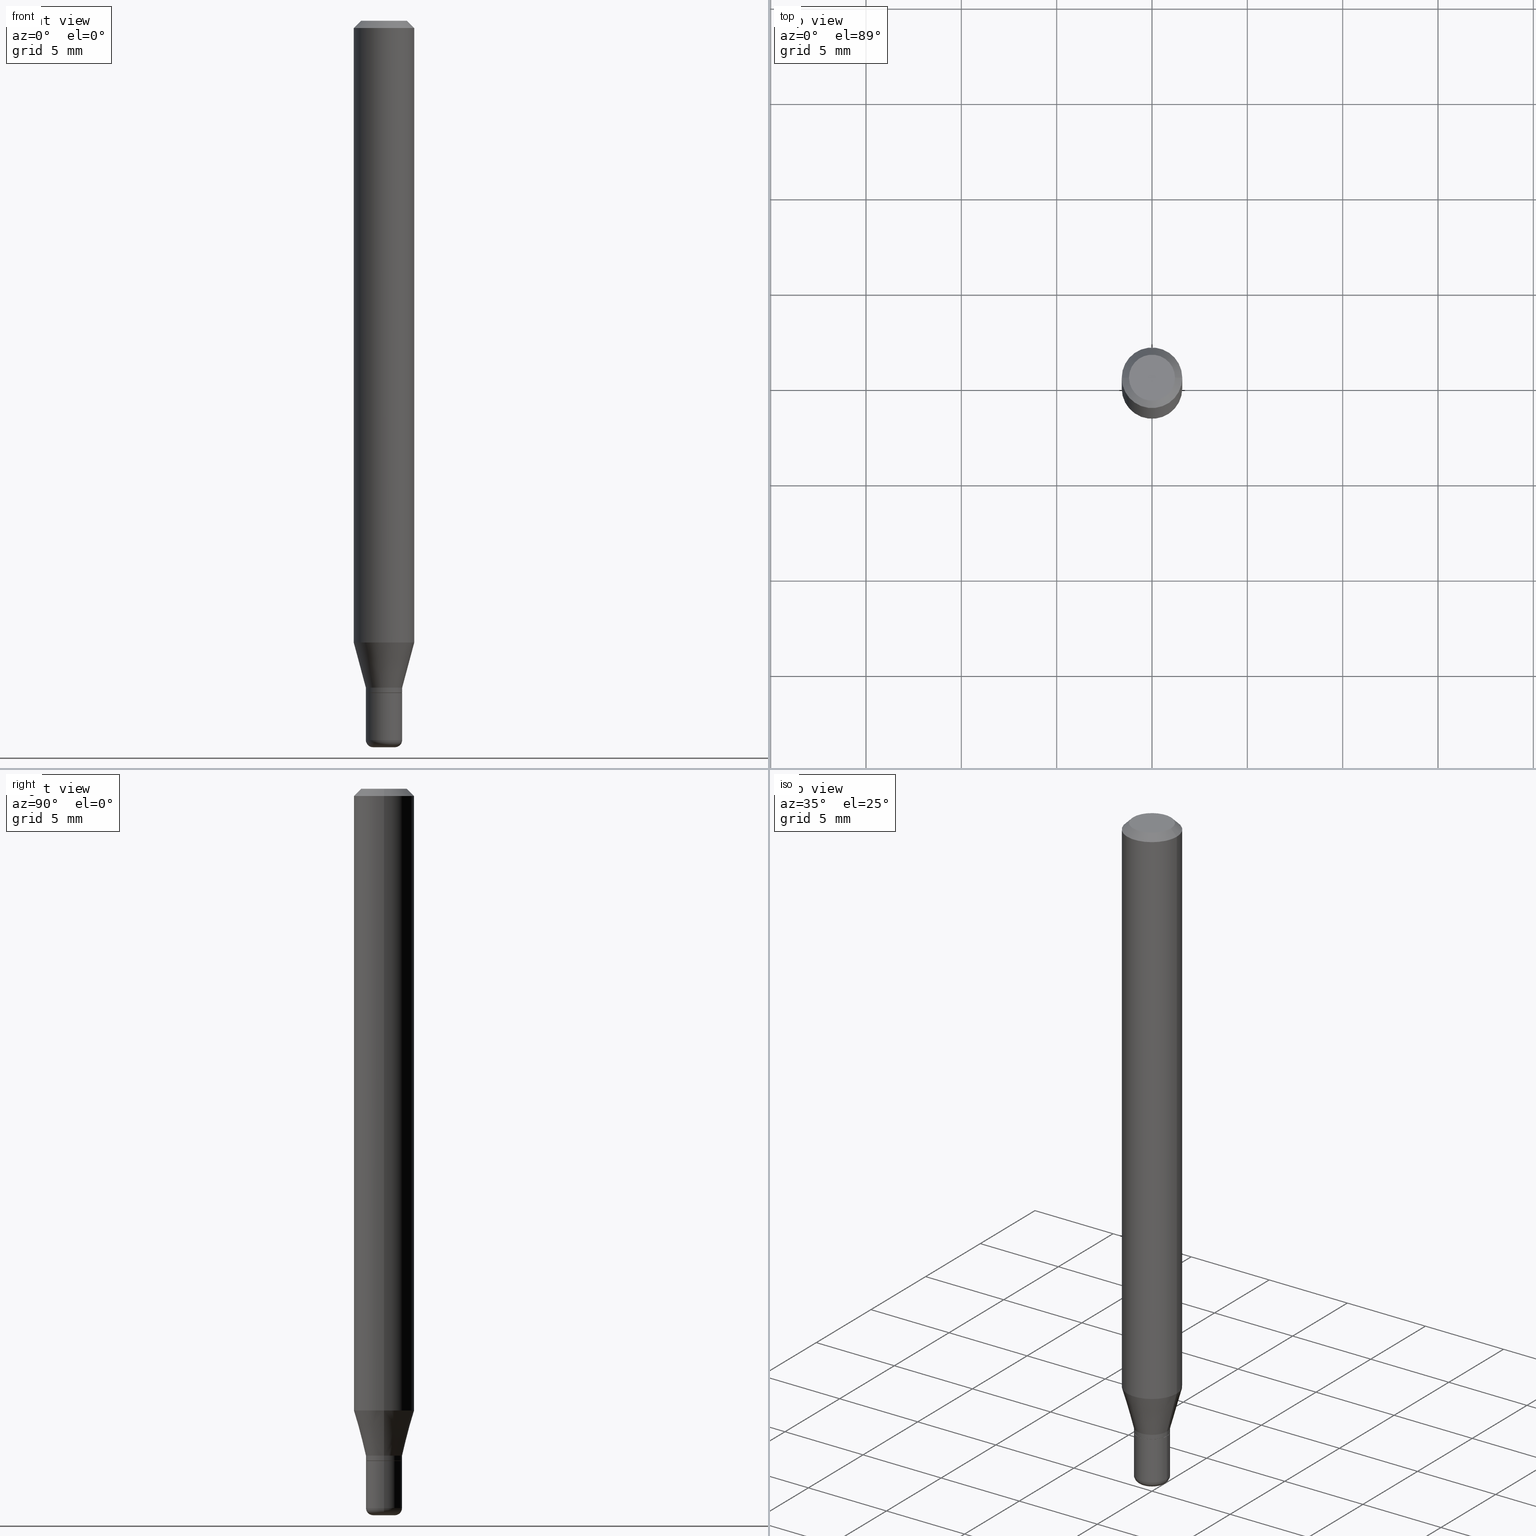
[diagram: canonical four-view strip — front | top / right | iso, engineering-drawing reading convention]
A machine part, canonical four-view strip (front | top / right | iso — engineering-drawing reading convention). The complete STEP part file that produces these views, byte-faithful:
ISO-10303-21;
HEADER;
FILE_DESCRIPTION (( 'STEP AP203' ),
    '1' );
FILE_NAME ('09040.STEP',
    '2024-02-29T21:31:39',
    ( '' ),
    ( '' ),
    'SwSTEP 2.0',
    'SolidWorks 2023',
    '' );
FILE_SCHEMA (( 'CONFIG_CONTROL_DESIGN' ));
ENDSEC;

DATA;
#1 = DIRECTION ( 'NONE',  ( 1.000000000000000000, -6.982962677686270655E-15, 4.883557194083114583E-29 ) ) ;
#2 = CARTESIAN_POINT ( 'NONE',  ( -0.02250000000000000264, -4.997873077495366167E-15, -1.500000000000000222 ) ) ;
#3 = CC_DESIGN_DATE_AND_TIME_ASSIGNMENT ( #504, #149, ( #316 ) ) ;
#4 = DIRECTION ( 'NONE',  ( 1.000000000000000000, -6.982962677686266711E-15, 0.000000000000000000 ) ) ;
#5 = ORIENTED_EDGE ( 'NONE', *, *, #499, .T. ) ;
#6 = VECTOR ( 'NONE', #382, 39.37007874015748143 ) ;
#7 = DIRECTION ( 'NONE',  ( 1.000000000000000000, -6.982962677686255667E-15, 0.000000000000000000 ) ) ;
#8 = VERTEX_POINT ( 'NONE', #476 ) ;
#9 = DIRECTION ( 'NONE',  ( -2.445468806185136597E-29, 3.491481338843145583E-15, 1.000000000000000000 ) ) ;
#10 = ORIENTED_EDGE ( 'NONE', *, *, #409, .F. ) ;
#11 = CARTESIAN_POINT ( 'NONE',  ( -0.03749999999999999861, -4.541316277676974321E-15, -1.377000000000000002 ) ) ;
#12 = ADVANCED_FACE ( 'NONE', ( #239 ), #119, .T. ) ;
#13 = AXIS2_PLACEMENT_3D ( 'NONE', #159, #320, #440 ) ;
#14 = CARTESIAN_POINT ( 'NONE',  ( 0.000000000000000000, 0.000000000000000000, 0.000000000000000000 ) ) ;
#15 = ORIENTED_EDGE ( 'NONE', *, *, #400, .T. ) ;
#16 = CARTESIAN_POINT ( 'NONE',  ( 0.03749999999999999861, -2.618611004132350016E-16, 1.828566290923475922E-30 ) ) ;
#17 = ORIENTED_EDGE ( 'NONE', *, *, #46, .T. ) ;
#18 = PERSON ( 'UNSPECIFIED', 'UNSPECIFIED', 'UNSPECIFIED', ('UNSPECIFIED'), ('UNSPECIFIED'), ('UNSPECIFIED') ) ;
#19 = ADVANCED_FACE ( 'NONE', ( #442 ), #251, .T. ) ;
#20 = DIRECTION ( 'NONE',  ( -2.445468806185136597E-29, 3.491481338843145583E-15, 1.000000000000000000 ) ) ;
#21 = ORIENTED_EDGE ( 'NONE', *, *, #452, .T. ) ;
#22 = CIRCLE ( 'NONE', #323, 0.03749999999999999861 ) ;
#23 = PRODUCT_DEFINITION_FORMATION_WITH_SPECIFIED_SOURCE ( 'ANY', '', #135, .NOT_KNOWN. ) ;
#24 = PERSON_AND_ORGANIZATION_ROLE ( 'creator' ) ;
#25 = FACE_OUTER_BOUND ( 'NONE', #514, .T. ) ;
#26 = EDGE_LOOP ( 'NONE', ( #223, #396 ) ) ;
#27 = APPROVAL_STATUS ( 'not_yet_approved' ) ;
#28 = DIRECTION ( 'NONE',  ( 2.445468806185136597E-29, -3.491481338843145583E-15, -1.000000000000000000 ) ) ;
#29 = ORIENTED_EDGE ( 'NONE', *, *, #35, .F. ) ;
#30 = ORIENTED_EDGE ( 'NONE', *, *, #484, .F. ) ;
#31 = VECTOR ( 'NONE', #453, 39.37007874015748143 ) ;
#32 = DIRECTION ( 'NONE',  ( 1.000000000000000000, -6.982962677686265922E-15, 4.876176775795935793E-29 ) ) ;
#33 = CARTESIAN_POINT ( 'NONE',  ( -0.06250000000000000000, -4.037920949980918021E-15, -1.283698729810778039 ) ) ;
#34 = DIRECTION ( 'NONE',  ( -2.445468806185136597E-29, 3.491481338843145583E-15, 1.000000000000000000 ) ) ;
#35 = EDGE_CURVE ( 'NONE', #151, #422, #77, .T. ) ;
#36 = CARTESIAN_POINT ( 'NONE',  ( 3.631521177184928138E-29, -5.184849788182071492E-15, -1.485000000000000098 ) ) ;
#37 = AXIS2_PLACEMENT_3D ( 'NONE', #235, #114, #362 ) ;
#38 = AXIS2_PLACEMENT_3D ( 'NONE', #404, #243, #513 ) ;
#39 = DIRECTION ( 'NONE',  ( 0.7071067811865479058, -7.319954787623257623E-15, -0.7071067811865471286 ) ) ;
#40 = DIRECTION ( 'NONE',  ( -0.7071067811865479058, 2.468850131082261005E-15, -0.7071067811865471286 ) ) ;
#41 = CARTESIAN_POINT ( 'NONE',  ( 0.000000000000000000, 0.000000000000000000, 0.000000000000000000 ) ) ;
#42 = EDGE_LOOP ( 'NONE', ( #299, #57 ) ) ;
#43 = DIRECTION ( 'NONE',  ( -2.445468806185136597E-29, 3.491481338843145583E-15, 1.000000000000000000 ) ) ;
#44 =( GEOMETRIC_REPRESENTATION_CONTEXT ( 3 ) GLOBAL_UNCERTAINTY_ASSIGNED_CONTEXT ( ( #262 ) ) GLOBAL_UNIT_ASSIGNED_CONTEXT ( ( #319, #284, #446 ) ) REPRESENTATION_CONTEXT ( 'NONE', 'WORKASPACE' ) );
#45 = CARTESIAN_POINT ( 'NONE',  ( 3.668203209277632395E-31, -5.237222008264614861E-17, -0.01499999999999970281 ) ) ;
#46 = EDGE_CURVE ( 'NONE', #91, #171, #244, .T. ) ;
#47 = DIRECTION ( 'NONE',  ( 1.000000000000000000, -6.982962677686266711E-15, 4.852736867747365086E-29 ) ) ;
#48 = CALENDAR_DATE ( 2024, 29, 2 ) ;
#49 = CARTESIAN_POINT ( 'NONE',  ( -0.03749999999999999167, -4.576231091065405970E-15, -1.387000000000000233 ) ) ;
#50 = AXIS2_PLACEMENT_3D ( 'NONE', #120, #282, #276 ) ;
#51 = CALENDAR_DATE ( 2024, 29, 2 ) ;
#52 = DIRECTION ( 'NONE',  ( 1.000000000000000000, -6.982962677686255667E-15, 0.000000000000000000 ) ) ;
#53 = PRODUCT_DEFINITION_SHAPE ( 'NONE', 'NONE',  #205 ) ;
#54 = EDGE_LOOP ( 'NONE', ( #361, #386, #67, #196 ) ) ;
#55 = ADVANCED_FACE ( 'NONE', ( #79 ), #402, .F. ) ;
#56 = CARTESIAN_POINT ( 'NONE',  ( 0.000000000000000000, 0.000000000000000000, 0.000000000000000000 ) ) ;
#57 = ORIENTED_EDGE ( 'NONE', *, *, #218, .F. ) ;
#58 = CALENDAR_DATE ( 2024, 29, 2 ) ;
#59 = DIRECTION ( 'NONE',  ( -2.445468806185136597E-29, 3.491481338843145583E-15, 1.000000000000000000 ) ) ;
#60 = ORIENTED_EDGE ( 'NONE', *, *, #148, .T. ) ;
#61 = AXIS2_PLACEMENT_3D ( 'NONE', #14, #9, #485 ) ;
#62 = VECTOR ( 'NONE', #125, 39.37007874015748143 ) ;
#63 = DIRECTION ( 'NONE',  ( 1.000000000000000000, -6.982962677686268288E-15, 0.000000000000000000 ) ) ;
#64 = ORIENTED_EDGE ( 'NONE', *, *, #265, .F. ) ;
#65 = CARTESIAN_POINT ( 'NONE',  ( 3.393087968581877252E-29, -4.844430357644865674E-15, -1.387500000000000178 ) ) ;
#66 = EDGE_CURVE ( 'NONE', #111, #193, #431, .T. ) ;
#67 = ORIENTED_EDGE ( 'NONE', *, *, #248, .F. ) ;
#68 = DIRECTION ( 'NONE',  ( -2.445468806185136597E-29, 3.491481338843145583E-15, 1.000000000000000000 ) ) ;
#69 = PLANE ( 'NONE',  #278 ) ;
#70 = AXIS2_PLACEMENT_3D ( 'NONE', #288, #170, #131 ) ;
#71 = AXIS2_PLACEMENT_3D ( 'NONE', #200, #158, #321 ) ;
#72 = DIRECTION ( 'NONE',  ( 0.000000000000000000, 0.000000000000000000, 1.000000000000000000 ) ) ;
#73 = AXIS2_PLACEMENT_3D ( 'NONE', #263, #59, #461 ) ;
#74 = VERTEX_POINT ( 'NONE', #202 ) ;
#75 = EDGE_CURVE ( 'NONE', #506, #340, #121, .T. ) ;
#76 = MECHANICAL_CONTEXT ( 'NONE', #191, 'mechanical' ) ;
#77 = LINE ( 'NONE', #283, #363 ) ;
#78 = PLANE ( 'NONE',  #237 ) ;
#79 = FACE_OUTER_BOUND ( 'NONE', #26, .T. ) ;
#80 = CARTESIAN_POINT ( 'NONE',  ( 3.316907271900976589E-16, 0.04750000000000000749, -2.925296391183627249E-17 ) ) ;
#81 = VECTOR ( 'NONE', #87, 39.37007874015748143 ) ;
#82 = ADVANCED_FACE ( 'NONE', ( #204 ), #301, .T. ) ;
#83 = AXIS2_PLACEMENT_3D ( 'NONE', #56, #306, #222 ) ;
#84 = DIRECTION ( 'NONE',  ( 1.000000000000000000, -6.982962677686265922E-15, 4.876176775795935793E-29 ) ) ;
#85 = PERSON_AND_ORGANIZATION ( #18, #347 ) ;
#86 = CYLINDRICAL_SURFACE ( 'NONE', #420, 0.03749999999999999861 ) ;
#87 = DIRECTION ( 'NONE',  ( -2.445468806185136877E-29, 3.491481338843145188E-15, 1.000000000000000000 ) ) ;
#88 = EDGE_LOOP ( 'NONE', ( #462, #173, #165, #425 ) ) ;
#89 = DIRECTION ( 'NONE',  ( -2.445468806185136597E-29, 3.491481338843145583E-15, 1.000000000000000000 ) ) ;
#90 = CIRCLE ( 'NONE', #433, 0.03749999999999999167 ) ;
#91 = VERTEX_POINT ( 'NONE', #285 ) ;
#92 = ADVANCED_FACE ( 'NONE', ( #118 ), #313, .T. ) ;
#93 = FACE_OUTER_BOUND ( 'NONE', #325, .T. ) ;
#94 = DIRECTION ( 'NONE',  ( -2.445468806185136877E-29, 3.491481338843145188E-15, 1.000000000000000000 ) ) ;
#95 = SECURITY_CLASSIFICATION_LEVEL ( 'unclassified' ) ;
#96 = CYLINDRICAL_SURFACE ( 'NONE', #371, 0.03749999999999999167 ) ;
#97 = CC_DESIGN_PERSON_AND_ORGANIZATION_ASSIGNMENT ( #194, #308, ( #316 ) ) ;
#98 = EDGE_LOOP ( 'NONE', ( #369, #147, #459, #254 ) ) ;
#99 = AXIS2_PLACEMENT_3D ( 'NONE', #312, #20, #226 ) ;
#100 = DIRECTION ( 'NONE',  ( -1.000000000000000000, 6.982962677686266711E-15, 0.000000000000000000 ) ) ;
#101 = VERTEX_POINT ( 'NONE', #163 ) ;
#102 = APPROVAL_ROLE ( '' ) ;
#103 = CARTESIAN_POINT ( 'NONE',  ( 0.03749999999999999861, -5.069630904000246734E-15, -1.377000000000000002 ) ) ;
#104 = EDGE_LOOP ( 'NONE', ( #21, #60, #343, #10 ) ) ;
#105 = APPROVAL_STATUS ( 'not_yet_approved' ) ;
#106 = DIRECTION ( 'NONE',  ( 1.000000000000000000, -6.982962677686266711E-15, 0.000000000000000000 ) ) ;
#107 = ORIENTED_EDGE ( 'NONE', *, *, #218, .T. ) ;
#108 = AXIS2_PLACEMENT_3D ( 'NONE', #143, #269, #427 ) ;
#109 = ADVANCED_FACE ( 'NONE', ( #482 ), #69, .F. ) ;
#110 = FACE_OUTER_BOUND ( 'NONE', #355, .T. ) ;
#111 = VERTEX_POINT ( 'NONE', #2 ) ;
#112 = PLANE ( 'NONE',  #116 ) ;
#113 = CARTESIAN_POINT ( 'NONE',  ( 3.367410546116933466E-29, -4.807769803587011733E-15, -1.377000000000000002 ) ) ;
#114 = DIRECTION ( 'NONE',  ( -2.445468806185136597E-29, 3.491481338843145583E-15, 1.000000000000000000 ) ) ;
#115 = ADVANCED_FACE ( 'NONE', ( #474 ), #112, .F. ) ;
#116 = AXIS2_PLACEMENT_3D ( 'NONE', #275, #398, #32 ) ;
#117 = AXIS2_PLACEMENT_3D ( 'NONE', #435, #185, #463 ) ;
#118 = FACE_OUTER_BOUND ( 'NONE', #479, .T. ) ;
#119 = CYLINDRICAL_SURFACE ( 'NONE', #37, 0.06250000000000000000 ) ;
#120 = CARTESIAN_POINT ( 'NONE',  ( 3.139245200291739433E-29, -4.482010159830980638E-15, -1.283698729810778039 ) ) ;
#121 = LINE ( 'NONE', #201, #509 ) ;
#122 = CONICAL_SURFACE ( 'NONE', #418, 0.03749999999999999861, 0.2617993877991490193 ) ;
#123 = LINE ( 'NONE', #214, #477 ) ;
#124 = LOCAL_TIME ( 16, 31, 39.00000000000000000, #341 ) ;
#125 = DIRECTION ( 'NONE',  ( 0.2588190451025203509, 1.565188264969630053E-15, 0.9659258262890684232 ) ) ;
#126 = CARTESIAN_POINT ( 'NONE',  ( 3.367410546116933466E-29, -4.807769803587011733E-15, -1.377000000000000002 ) ) ;
#127 = ADVANCED_FACE ( 'NONE', ( #515 ), #166, .T. ) ;
#128 = ORIENTED_EDGE ( 'NONE', *, *, #394, .F. ) ;
#129 = DIRECTION ( 'NONE',  ( -2.445468806185136597E-29, 3.491481338843145583E-15, 1.000000000000000000 ) ) ;
#130 = CIRCLE ( 'NONE', #141, 0.06250000000000000000 ) ;
#131 = DIRECTION ( 'NONE',  ( 1.000000000000000000, -6.982962677686267499E-15, 0.000000000000000000 ) ) ;
#132 = ADVANCED_FACE ( 'NONE', ( #93 ), #378, .T. ) ;
#133 = DATE_TIME_ROLE ( 'creation_date' ) ;
#134 = LINE ( 'NONE', #231, #510 ) ;
#135 = PRODUCT ( '09040', '09040', '', ( #76 ) ) ;
#136 = COORDINATED_UNIVERSAL_TIME_OFFSET ( 5, 0, .BEHIND. ) ;
#137 = DESIGN_CONTEXT ( 'detailed design', #387, 'design' ) ;
#138 = DIRECTION ( 'NONE',  ( -2.445468806185136597E-29, 3.491481338843145583E-15, 1.000000000000000000 ) ) ;
#139 = AXIS2_PLACEMENT_3D ( 'NONE', #455, #215, #47 ) ;
#140 = ORIENTED_EDGE ( 'NONE', *, *, #413, .F. ) ;
#141 = AXIS2_PLACEMENT_3D ( 'NONE', #502, #395, #106 ) ;
#142 = CC_DESIGN_APPROVAL ( #356, ( #205 ) ) ;
#143 = CARTESIAN_POINT ( 'NONE',  ( 3.391865234178785011E-29, -4.842684616975444171E-15, -1.387000000000000233 ) ) ;
#144 = ORIENTED_EDGE ( 'NONE', *, *, #75, .T. ) ;
#145 = PERSON_AND_ORGANIZATION ( #18, #347 ) ;
#146 = CYLINDRICAL_SURFACE ( 'NONE', #83, 0.03749999999999999167 ) ;
#147 = ORIENTED_EDGE ( 'NONE', *, *, #224, .F. ) ;
#148 = EDGE_CURVE ( 'NONE', #249, #246, #415, .T. ) ;
#149 = DATE_TIME_ROLE ( 'classification_date' ) ;
#150 = LINE ( 'NONE', #16, #324 ) ;
#151 = VERTEX_POINT ( 'NONE', #333 ) ;
#152 = CIRCLE ( 'NONE', #448, 0.06250000000000000000 ) ;
#153 = CIRCLE ( 'NONE', #279, 0.03749999999999999861 ) ;
#154 = EDGE_LOOP ( 'NONE', ( #408, #496, #221, #297 ) ) ;
#155 = DIMENSIONAL_EXPONENTS ( 1.000000000000000000, 0.000000000000000000, 0.000000000000000000, 0.000000000000000000, 0.000000000000000000, 0.000000000000000000, 0.000000000000000000 ) ;
#156 = EDGE_CURVE ( 'NONE', #310, #491, #152, .T. ) ;
#157 = LENGTH_MEASURE_WITH_UNIT ( LENGTH_MEASURE( 0.02539999999999999897 ), #203 );
#158 = DIRECTION ( 'NONE',  ( -2.445468806185136597E-29, 3.491481338843145583E-15, 1.000000000000000000 ) ) ;
#159 = CARTESIAN_POINT ( 'NONE',  ( 3.668203209277632395E-31, -5.237222008264614861E-17, -0.01499999999999970281 ) ) ;
#160 = CONICAL_SURFACE ( 'NONE', #449, 0.06250000000000000000, 0.7853981633974488341 ) ;
#161 = DIRECTION ( 'NONE',  ( 1.000000000000000000, -6.982962677686255667E-15, 0.000000000000000000 ) ) ;
#162 = DIRECTION ( 'NONE',  ( 1.000000000000000000, -6.982962677686270655E-15, 4.883557194083114583E-29 ) ) ;
#163 = CARTESIAN_POINT ( 'NONE',  ( -0.03699999999999999123, -4.578880318239517171E-15, -1.387500000000000178 ) ) ;
#164 = CC_DESIGN_DATE_AND_TIME_ASSIGNMENT ( #384, #133, ( #205 ) ) ;
#165 = ORIENTED_EDGE ( 'NONE', *, *, #156, .F. ) ;
#166 = CONICAL_SURFACE ( 'NONE', #71, 0.03749999999999999861, 0.2617993877991490193 ) ;
#167 = LINE ( 'NONE', #330, #62 ) ;
#168 = CC_DESIGN_APPROVAL ( #437, ( #316 ) ) ;
#169 = EDGE_CURVE ( 'NONE', #491, #422, #456, .T. ) ;
#170 = DIRECTION ( 'NONE',  ( -2.445468806185136597E-29, 3.491481338843145583E-15, 1.000000000000000000 ) ) ;
#171 = VERTEX_POINT ( 'NONE', #327 ) ;
#172 = LINE ( 'NONE', #11, #31 ) ;
#173 = ORIENTED_EDGE ( 'NONE', *, *, #209, .T. ) ;
#174 = DIRECTION ( 'NONE',  ( -2.445468806185136597E-29, 3.491481338843145583E-15, 1.000000000000000000 ) ) ;
#175 = VECTOR ( 'NONE', #206, 39.37007874015748143 ) ;
#176 = CONICAL_SURFACE ( 'NONE', #441, 0.03699999999999999123, 0.7853981633975507526 ) ;
#177 = EDGE_LOOP ( 'NONE', ( #307, #144, #15, #29 ) ) ;
#178 = CC_DESIGN_PERSON_AND_ORGANIZATION_ASSIGNMENT ( #189, #466, ( #23 ) ) ;
#179 = DIRECTION ( 'NONE',  ( -2.445468806185136877E-29, 3.491481338843145188E-15, 1.000000000000000000 ) ) ;
#180 = ORIENTED_EDGE ( 'NONE', *, *, #518, .F. ) ;
#181 = SHAPE_DEFINITION_REPRESENTATION ( #53, #443 ) ;
#182 = DIRECTION ( 'NONE',  ( -2.445468806185136877E-29, 3.491481338843145188E-15, 1.000000000000000000 ) ) ;
#183 = EDGE_LOOP ( 'NONE', ( #187, #500, #512, #232 ) ) ;
#184 = COORDINATED_UNIVERSAL_TIME_OFFSET ( 5, 0, .BEHIND. ) ;
#185 = DIRECTION ( 'NONE',  ( -2.445468806185136597E-29, 3.491481338843145583E-15, 1.000000000000000000 ) ) ;
#186 = AXIS2_PLACEMENT_3D ( 'NONE', #253, #43, #416 ) ;
#187 = ORIENTED_EDGE ( 'NONE', *, *, #156, .T. ) ;
#188 = CIRCLE ( 'NONE', #399, 0.03699999999999999123 ) ;
#189 = PERSON_AND_ORGANIZATION ( #18, #347 ) ;
#190 = DIRECTION ( 'NONE',  ( 1.000000000000000000, -6.982962677686266711E-15, 4.876176775795935793E-29 ) ) ;
#191 = APPLICATION_CONTEXT ( 'configuration controlled 3d designs of mechanical parts and assemblies' ) ;
#192 = ADVANCED_FACE ( 'NONE', ( #486 ), #122, .T. ) ;
#193 = VERTEX_POINT ( 'NONE', #331 ) ;
#194 = PERSON_AND_ORGANIZATION ( #18, #347 ) ;
#195 = CARTESIAN_POINT ( 'NONE',  ( 3.393087968581877252E-29, -4.844430357644865674E-15, -1.387500000000000178 ) ) ;
#196 = ORIENTED_EDGE ( 'NONE', *, *, #242, .F. ) ;
#197 = EDGE_LOOP ( 'NONE', ( #472, #468, #180, #264 ) ) ;
#198 = ADVANCED_FACE ( 'NONE', ( #289 ), #258, .T. ) ;
#199 = AXIS2_PLACEMENT_3D ( 'NONE', #298, #385, #259 ) ;
#200 = CARTESIAN_POINT ( 'NONE',  ( 3.367410546116933466E-29, -4.807769803587011733E-15, -1.377000000000000002 ) ) ;
#201 = CARTESIAN_POINT ( 'NONE',  ( 0.06250000000000000000, -4.811533449433669144E-16, -0.01499999999999970281 ) ) ;
#202 = CARTESIAN_POINT ( 'NONE',  ( -0.03749999999999999861, -4.748186547003430777E-15, -1.387500000000000178 ) ) ;
#203 =( LENGTH_UNIT ( ) NAMED_UNIT ( * ) SI_UNIT ( $, .METRE. ) );
#204 = FACE_OUTER_BOUND ( 'NONE', #177, .T. ) ;
#205 = PRODUCT_DEFINITION ( 'UNKNOWN', '', #23, #137 ) ;
#206 = DIRECTION ( 'NONE',  ( 0.7071067811866199593, -2.468850131083015945E-15, 0.7071067811864750752 ) ) ;
#207 = CARTESIAN_POINT ( 'NONE',  ( 0.02249999999999999917, -5.341966448430012335E-15, -1.485000000000000098 ) ) ;
#208 = ORIENTED_EDGE ( 'NONE', *, *, #492, .F. ) ;
#209 = EDGE_CURVE ( 'NONE', #246, #491, #172, .T. ) ;
#210 = LOCAL_TIME ( 16, 31, 39.00000000000000000, #184 ) ;
#211 = CARTESIAN_POINT ( 'NONE',  ( 3.393087968581877252E-29, -4.844430357644865674E-15, -1.387500000000000178 ) ) ;
#212 = DIRECTION ( 'NONE',  ( -2.445468806185136597E-29, 3.491481338843145583E-15, 1.000000000000000000 ) ) ;
#213 = EDGE_LOOP ( 'NONE', ( #383, #5, #274, #290 ) ) ;
#214 = CARTESIAN_POINT ( 'NONE',  ( 0.03749999999999999167, -2.618611004132349523E-16, 1.828566290923475572E-30 ) ) ;
#215 = DIRECTION ( 'NONE',  ( -2.445468806185136597E-29, 3.491481338843145583E-15, 1.000000000000000000 ) ) ;
#216 = VECTOR ( 'NONE', #255, 39.37007874015748143 ) ;
#217 = CIRCLE ( 'NONE', #50, 0.06250000000000000000 ) ;
#218 = EDGE_CURVE ( 'NONE', #111, #8, #236, .T. ) ;
#219 = DATE_AND_TIME ( #51, #124 ) ;
#220 = FACE_OUTER_BOUND ( 'NONE', #154, .T. ) ;
#221 = ORIENTED_EDGE ( 'NONE', *, *, #452, .F. ) ;
#222 = DIRECTION ( 'NONE',  ( 1.000000000000000000, -6.982962677686266711E-15, 4.876176775795935793E-29 ) ) ;
#223 = ORIENTED_EDGE ( 'NONE', *, *, #248, .T. ) ;
#224 = EDGE_CURVE ( 'NONE', #151, #506, #370, .T. ) ;
#225 = PERSON_AND_ORGANIZATION ( #18, #347 ) ;
#226 = DIRECTION ( 'NONE',  ( 1.000000000000000000, -6.982962677686255667E-15, 0.000000000000000000 ) ) ;
#227 = ORIENTED_EDGE ( 'NONE', *, *, #413, .T. ) ;
#228 = PERSON_AND_ORGANIZATION_ROLE ( 'creator' ) ;
#229 = FACE_OUTER_BOUND ( 'NONE', #98, .T. ) ;
#230 = ORIENTED_EDGE ( 'NONE', *, *, #242, .T. ) ;
#231 = CARTESIAN_POINT ( 'NONE',  ( -0.03749999999999999167, 2.664535259100375105E-16, -1.844600658845589458E-30 ) ) ;
#232 = ORIENTED_EDGE ( 'NONE', *, *, #429, .F. ) ;
#233 = EDGE_CURVE ( 'NONE', #506, #151, #439, .T. ) ;
#234 = APPLICATION_PROTOCOL_DEFINITION ( 'international standard', 'config_control_design', 1994, #191 ) ;
#235 = CARTESIAN_POINT ( 'NONE',  ( 0.000000000000000000, 0.000000000000000000, 0.000000000000000000 ) ) ;
#236 = CIRCLE ( 'NONE', #70, 0.02250000000000000264 ) ;
#237 = AXIS2_PLACEMENT_3D ( 'NONE', #80, #397, #240 ) ;
#238 = DIRECTION ( 'NONE',  ( 1.000000000000000000, 0.000000000000000000, 0.000000000000000000 ) ) ;
#239 = FACE_OUTER_BOUND ( 'NONE', #183, .T. ) ;
#240 = DIRECTION ( 'NONE',  ( -1.000000000000000000, 6.982962677686265922E-15, -4.876176775795935793E-29 ) ) ;
#241 = CARTESIAN_POINT ( 'NONE',  ( -0.02249999999999999917, -5.024977672636049203E-15, -1.485000000000000098 ) ) ;
#242 = EDGE_CURVE ( 'NONE', #428, #357, #123, .T. ) ;
#243 = DIRECTION ( 'NONE',  ( -2.445468806185136597E-29, 3.491481338843145583E-15, 1.000000000000000000 ) ) ;
#244 = LINE ( 'NONE', #277, #175 ) ;
#245 = CIRCLE ( 'NONE', #73, 0.03749999999999999861 ) ;
#246 = VERTEX_POINT ( 'NONE', #374 ) ;
#247 = DIRECTION ( 'NONE',  ( 1.000000000000000000, -6.982962677686262766E-15, 0.000000000000000000 ) ) ;
#248 = EDGE_CURVE ( 'NONE', #357, #74, #22, .T. ) ;
#249 = VERTEX_POINT ( 'NONE', #49 ) ;
#250 = DIRECTION ( 'NONE',  ( -2.445468806185136597E-29, 3.491481338843145583E-15, 1.000000000000000000 ) ) ;
#251 = TOROIDAL_SURFACE ( 'NONE', #406, 0.02249999999999999917, 0.01499999999999998904 ) ;
#252 = LOCAL_TIME ( 16, 31, 39.00000000000000000, #305 ) ;
#253 = CARTESIAN_POINT ( 'NONE',  ( -6.680649051745406845E-45, 9.538196290434862081E-31, 2.731847993664263218E-16 ) ) ;
#254 = ORIENTED_EDGE ( 'NONE', *, *, #295, .T. ) ;
#255 = DIRECTION ( 'NONE',  ( -2.445468806185136877E-29, 3.491481338843145188E-15, 1.000000000000000000 ) ) ;
#256 = APPROVAL_ROLE ( '' ) ;
#257 = CC_DESIGN_PERSON_AND_ORGANIZATION_ASSIGNMENT ( #430, #228, ( #205 ) ) ;
#258 = CYLINDRICAL_SURFACE ( 'NONE', #328, 0.06250000000000000000 ) ;
#259 = DIRECTION ( 'NONE',  ( 1.000000000000000000, -6.982962677686267499E-15, 0.000000000000000000 ) ) ;
#260 = AXIS2_PLACEMENT_3D ( 'NONE', #207, #414, #368 ) ;
#261 = ORIENTED_EDGE ( 'NONE', *, *, #224, .T. ) ;
#262 = UNCERTAINTY_MEASURE_WITH_UNIT (LENGTH_MEASURE( 1.000000000000000082E-05 ), #319, 'distance_accuracy_value', 'NONE');
#263 = CARTESIAN_POINT ( 'NONE',  ( 3.367410546116933466E-29, -4.807769803587011733E-15, -1.377000000000000002 ) ) ;
#264 = ORIENTED_EDGE ( 'NONE', *, *, #281, .F. ) ;
#265 = EDGE_CURVE ( 'NONE', #91, #101, #272, .T. ) ;
#266 = CARTESIAN_POINT ( 'NONE',  ( 0.06250000000000000000, -4.888073874380378612E-16, -0.01499999999999970281 ) ) ;
#267 = ORIENTED_EDGE ( 'NONE', *, *, #233, .T. ) ;
#268 = APPROVAL_ROLE ( '' ) ;
#269 = DIRECTION ( 'NONE',  ( -2.445468806185136597E-29, 3.491481338843145583E-15, 1.000000000000000000 ) ) ;
#270 = CLOSED_SHELL ( 'NONE', ( #19, #326, #55, #445, #92, #109 ) ) ;
#271 = ORIENTED_EDGE ( 'NONE', *, *, #322, .F. ) ;
#272 = CIRCLE ( 'NONE', #497, 0.03699999999999999123 ) ;
#273 = ADVANCED_FACE ( 'NONE', ( #287 ), #86, .T. ) ;
#274 = ORIENTED_EDGE ( 'NONE', *, *, #429, .T. ) ;
#275 = CARTESIAN_POINT ( 'NONE',  ( 3.393087968581877252E-29, -4.844430357644865674E-15, -1.387500000000000178 ) ) ;
#276 = DIRECTION ( 'NONE',  ( 1.000000000000000000, -6.982962677686262766E-15, 0.000000000000000000 ) ) ;
#277 = CARTESIAN_POINT ( 'NONE',  ( 0.03699999999999999123, -5.102799976719256880E-15, -1.387500000000000178 ) ) ;
#278 = AXIS2_PLACEMENT_3D ( 'NONE', #447, #403, #84 ) ;
#279 = AXIS2_PLACEMENT_3D ( 'NONE', #113, #68, #481 ) ;
#280 = CARTESIAN_POINT ( 'NONE',  ( 3.631521177184928138E-29, -5.184849788182071492E-15, -1.485000000000000098 ) ) ;
#281 = EDGE_CURVE ( 'NONE', #8, #428, #315, .T. ) ;
#282 = DIRECTION ( 'NONE',  ( -2.445468806185136597E-29, 3.491481338843145583E-15, 1.000000000000000000 ) ) ;
#283 = CARTESIAN_POINT ( 'NONE',  ( -0.06250000000000000000, 3.840629472727455270E-16, -0.01499999999999970281 ) ) ;
#284 =( NAMED_UNIT ( * ) PLANE_ANGLE_UNIT ( ) SI_UNIT ( $, .RADIAN. ) );
#285 = CARTESIAN_POINT ( 'NONE',  ( 0.03699999999999999123, -5.102799976719256880E-15, -1.387500000000000178 ) ) ;
#286 = VECTOR ( 'NONE', #182, 39.37007874015748143 ) ;
#287 = FACE_OUTER_BOUND ( 'NONE', #104, .T. ) ;
#288 = CARTESIAN_POINT ( 'NONE',  ( 3.668203209277704895E-29, -5.237222008264718177E-15, -1.500000000000000222 ) ) ;
#289 = FACE_OUTER_BOUND ( 'NONE', #213, .T. ) ;
#290 = ORIENTED_EDGE ( 'NONE', *, *, #295, .F. ) ;
#291 = AXIS2_PLACEMENT_3D ( 'NONE', #241, #444, #405 ) ;
#292 = LOCAL_TIME ( 16, 31, 39.00000000000000000, #392 ) ;
#293 = LOCAL_TIME ( 16, 31, 39.00000000000000000, #136 ) ;
#294 = CARTESIAN_POINT ( 'NONE',  ( 0.000000000000000000, 0.000000000000000000, 0.000000000000000000 ) ) ;
#295 = EDGE_CURVE ( 'NONE', #422, #340, #471, .T. ) ;
#296 = DIRECTION ( 'NONE',  ( -2.445468806185136597E-29, 3.491481338843145583E-15, 1.000000000000000000 ) ) ;
#297 = ORIENTED_EDGE ( 'NONE', *, *, #46, .F. ) ;
#298 = CARTESIAN_POINT ( 'NONE',  ( 3.668203209277704895E-29, -5.237222008264718177E-15, -1.500000000000000222 ) ) ;
#299 = ORIENTED_EDGE ( 'NONE', *, *, #334, .F. ) ;
#300 = CARTESIAN_POINT ( 'NONE',  ( 3.668203209277632395E-31, -5.237222008264614861E-17, -0.01499999999999970281 ) ) ;
#301 = CONICAL_SURFACE ( 'NONE', #13, 0.06250000000000000000, 0.7853981633974488341 ) ;
#302 = EDGE_CURVE ( 'NONE', #332, #310, #167, .T. ) ;
#303 = AXIS2_PLACEMENT_3D ( 'NONE', #45, #212, #4 ) ;
#304 = EDGE_LOOP ( 'NONE', ( #64, #30 ) ) ;
#305 = COORDINATED_UNIVERSAL_TIME_OFFSET ( 5, 0, .BEHIND. ) ;
#306 = DIRECTION ( 'NONE',  ( -2.445468806185136597E-29, 3.491481338843145583E-15, 1.000000000000000000 ) ) ;
#307 = ORIENTED_EDGE ( 'NONE', *, *, #233, .F. ) ;
#308 = PERSON_AND_ORGANIZATION_ROLE ( 'classification_officer' ) ;
#309 = CARTESIAN_POINT ( 'NONE',  ( 3.393087968581877252E-29, -4.844430357644865674E-15, -1.387500000000000178 ) ) ;
#310 = VERTEX_POINT ( 'NONE', #339 ) ;
#311 = PERSON_AND_ORGANIZATION_ROLE ( 'design_owner' ) ;
#312 = CARTESIAN_POINT ( 'NONE',  ( 3.393087968581877252E-29, -4.844430357644865674E-15, -1.387500000000000178 ) ) ;
#313 = TOROIDAL_SURFACE ( 'NONE', #460, 0.02249999999999999917, 0.01499999999999998904 ) ;
#314 = ORIENTED_EDGE ( 'NONE', *, *, #499, .F. ) ;
#315 = CIRCLE ( 'NONE', #260, 0.01499999999999998904 ) ;
#316 = SECURITY_CLASSIFICATION ( '', '', #95 ) ;
#317 = EDGE_CURVE ( 'NONE', #332, #246, #245, .T. ) ;
#318 = ORIENTED_EDGE ( 'NONE', *, *, #484, .T. ) ;
#319 =( CONVERSION_BASED_UNIT ( 'INCH', #157 ) LENGTH_UNIT ( ) NAMED_UNIT ( #155 ) );
#320 = DIRECTION ( 'NONE',  ( 2.445468806185136597E-29, -3.491481338843145583E-15, -1.000000000000000000 ) ) ;
#321 = DIRECTION ( 'NONE',  ( 1.000000000000000000, -6.982962677686268288E-15, 0.000000000000000000 ) ) ;
#322 = EDGE_CURVE ( 'NONE', #193, #428, #364, .T. ) ;
#323 = AXIS2_PLACEMENT_3D ( 'NONE', #211, #372, #338 ) ;
#324 = VECTOR ( 'NONE', #179, 39.37007874015748143 ) ;
#325 = EDGE_LOOP ( 'NONE', ( #379, #227, #503, #208 ) ) ;
#326 = ADVANCED_FACE ( 'NONE', ( #424 ), #146, .T. ) ;
#327 = CARTESIAN_POINT ( 'NONE',  ( 0.03749999999999999167, -5.104545717388679172E-15, -1.387000000000000233 ) ) ;
#328 = AXIS2_PLACEMENT_3D ( 'NONE', #294, #129, #451 ) ;
#329 = CIRCLE ( 'NONE', #108, 0.03749999999999999167 ) ;
#330 = CARTESIAN_POINT ( 'NONE',  ( 0.03749999999999999861, -5.069630904000246734E-15, -1.377000000000000002 ) ) ;
#331 = CARTESIAN_POINT ( 'NONE',  ( -0.03749999999999999167, -4.748186547003430777E-15, -1.485000000000000098 ) ) ;
#332 = VERTEX_POINT ( 'NONE', #103 ) ;
#333 = CARTESIAN_POINT ( 'NONE',  ( -0.04750000000000000749, 3.578768372314221353E-16, 2.731847993664239060E-16 ) ) ;
#334 = EDGE_CURVE ( 'NONE', #8, #111, #407, .T. ) ;
#335 = ORIENTED_EDGE ( 'NONE', *, *, #360, .F. ) ;
#336 = AXIS2_PLACEMENT_3D ( 'NONE', #475, #72, #238 ) ;
#337 = CC_DESIGN_APPROVAL ( #380, ( #23 ) ) ;
#338 = DIRECTION ( 'NONE',  ( 1.000000000000000000, -6.982962677686268288E-15, 0.000000000000000000 ) ) ;
#339 = CARTESIAN_POINT ( 'NONE',  ( 0.06250000000000000000, -4.918445327186372307E-15, -1.283698729810778039 ) ) ;
#340 = VERTEX_POINT ( 'NONE', #266 ) ;
#341 = COORDINATED_UNIVERSAL_TIME_OFFSET ( 5, 0, .BEHIND. ) ;
#342 = CARTESIAN_POINT ( 'NONE',  ( 0.03749999999999999167, -5.446710888595306494E-15, -1.485000000000000098 ) ) ;
#343 = ORIENTED_EDGE ( 'NONE', *, *, #317, .F. ) ;
#344 = CALENDAR_DATE ( 2024, 29, 2 ) ;
#345 = AXIS2_PLACEMENT_3D ( 'NONE', #478, #359, #367 ) ;
#346 = DIRECTION ( 'NONE',  ( -2.445468806185136597E-29, 3.491481338843145583E-15, 1.000000000000000000 ) ) ;
#347 = ORGANIZATION ( 'UNSPECIFIED', 'UNSPECIFIED', '' ) ;
#348 = APPROVAL_PERSON_ORGANIZATION ( #419, #437, #256 ) ;
#349 = ORIENTED_EDGE ( 'NONE', *, *, #492, .T. ) ;
#350 = APPLICATION_PROTOCOL_DEFINITION ( 'international standard', 'config_control_design', 1994, #387 ) ;
#351 = CARTESIAN_POINT ( 'NONE',  ( 3.391865234178785011E-29, -4.842684616975444171E-15, -1.387000000000000233 ) ) ;
#352 = ORIENTED_EDGE ( 'NONE', *, *, #281, .T. ) ;
#353 = CALENDAR_DATE ( 2024, 29, 2 ) ;
#354 = DIRECTION ( 'NONE',  ( -2.445468806185136597E-29, 3.491481338843145583E-15, 1.000000000000000000 ) ) ;
#355 = EDGE_LOOP ( 'NONE', ( #128, #318, #17, #140 ) ) ;
#356 = APPROVAL ( #105, 'UNSPECIFIED' ) ;
#357 = VERTEX_POINT ( 'NONE', #493 ) ;
#358 = CIRCLE ( 'NONE', #38, 0.03749999999999999167 ) ;
#359 = DIRECTION ( 'NONE',  ( 2.438088387897960049E-29, -3.491481338843145188E-15, -1.000000000000000000 ) ) ;
#360 = EDGE_CURVE ( 'NONE', #193, #74, #134, .T. ) ;
#361 = ORIENTED_EDGE ( 'NONE', *, *, #518, .T. ) ;
#362 = DIRECTION ( 'NONE',  ( 1.000000000000000000, -6.982962677686266711E-15, 4.876176775795935793E-29 ) ) ;
#363 = VECTOR ( 'NONE', #40, 39.37007874015748143 ) ;
#364 = CIRCLE ( 'NONE', #117, 0.03749999999999999167 ) ;
#365 = DIRECTION ( 'NONE',  ( -2.445468806185136597E-29, 3.491481338843145583E-15, 1.000000000000000000 ) ) ;
#366 = CC_DESIGN_PERSON_AND_ORGANIZATION_ASSIGNMENT ( #388, #24, ( #23 ) ) ;
#367 = DIRECTION ( 'NONE',  ( -1.000000000000000000, 6.982962677686265922E-15, -4.876176775795935793E-29 ) ) ;
#368 = DIRECTION ( 'NONE',  ( 1.000000000000000000, -6.982962677686273021E-15, 0.000000000000000000 ) ) ;
#369 = ORIENTED_EDGE ( 'NONE', *, *, #75, .F. ) ;
#370 = CIRCLE ( 'NONE', #139, 0.04750000000000000749 ) ;
#371 = AXIS2_PLACEMENT_3D ( 'NONE', #421, #393, #190 ) ;
#372 = DIRECTION ( 'NONE',  ( -2.445468806185136597E-29, 3.491481338843145583E-15, 1.000000000000000000 ) ) ;
#373 = ADVANCED_FACE ( 'NONE', ( #220 ), #176, .T. ) ;
#374 = CARTESIAN_POINT ( 'NONE',  ( -0.03749999999999999861, -4.289618613828946171E-15, -1.377000000000000002 ) ) ;
#375 = PRODUCT_RELATED_PRODUCT_CATEGORY ( 'detail', '', ( #135 ) ) ;
#376 = ORIENTED_EDGE ( 'NONE', *, *, #322, .T. ) ;
#377 = AXIS2_PLACEMENT_3D ( 'NONE', #309, #432, #63 ) ;
#378 = CYLINDRICAL_SURFACE ( 'NONE', #61, 0.03749999999999999861 ) ;
#379 = ORIENTED_EDGE ( 'NONE', *, *, #148, .F. ) ;
#380 = APPROVAL ( #27, 'UNSPECIFIED' ) ;
#381 = APPROVAL_DATE_TIME ( #219, #437 ) ;
#382 = DIRECTION ( 'NONE',  ( -0.7071067811866199593, 7.493145998870616062E-15, 0.7071067811864750752 ) ) ;
#383 = ORIENTED_EDGE ( 'NONE', *, *, #169, .F. ) ;
#384 = DATE_AND_TIME ( #58, #252 ) ;
#385 = DIRECTION ( 'NONE',  ( -2.445468806185136597E-29, 3.491481338843145583E-15, 1.000000000000000000 ) ) ;
#386 = ORIENTED_EDGE ( 'NONE', *, *, #360, .T. ) ;
#387 = APPLICATION_CONTEXT ( 'configuration controlled 3d designs of mechanical parts and assemblies' ) ;
#388 = PERSON_AND_ORGANIZATION ( #18, #347 ) ;
#389 = CARTESIAN_POINT ( 'NONE',  ( 0.06250000000000000000, -4.364351673553916694E-16, 3.047610484872459871E-30 ) ) ;
#390 = CIRCLE ( 'NONE', #377, 0.03749999999999999861 ) ;
#391 = EDGE_LOOP ( 'NONE', ( #434, #349, #436, #314 ) ) ;
#392 = COORDINATED_UNIVERSAL_TIME_OFFSET ( 5, 0, .BEHIND. ) ;
#393 = DIRECTION ( 'NONE',  ( -2.445468806185136597E-29, 3.491481338843145583E-15, 1.000000000000000000 ) ) ;
#394 = EDGE_CURVE ( 'NONE', #101, #249, #498, .T. ) ;
#395 = DIRECTION ( 'NONE',  ( -2.445468806185136597E-29, 3.491481338843145583E-15, 1.000000000000000000 ) ) ;
#396 = ORIENTED_EDGE ( 'NONE', *, *, #465, .T. ) ;
#397 = DIRECTION ( 'NONE',  ( 2.438088387897960049E-29, -3.491481338843145188E-15, -1.000000000000000000 ) ) ;
#398 = DIRECTION ( 'NONE',  ( -2.438088387897960049E-29, 3.491481338843145188E-15, 1.000000000000000000 ) ) ;
#399 = AXIS2_PLACEMENT_3D ( 'NONE', #195, #354, #161 ) ;
#400 = EDGE_CURVE ( 'NONE', #340, #422, #130, .T. ) ;
#401 = CARTESIAN_POINT ( 'NONE',  ( 0.04750000000000000749, -4.035134999187568762E-16, 2.731847993664288856E-16 ) ) ;
#402 = PLANE ( 'NONE',  #345 ) ;
#403 = DIRECTION ( 'NONE',  ( -2.438088387897960049E-29, 3.491481338843145188E-15, 1.000000000000000000 ) ) ;
#404 = CARTESIAN_POINT ( 'NONE',  ( 3.631521177184928138E-29, -5.184849788182071492E-15, -1.485000000000000098 ) ) ;
#405 = DIRECTION ( 'NONE',  ( -1.000000000000000000, 7.105427357600996337E-15, 0.000000000000000000 ) ) ;
#406 = AXIS2_PLACEMENT_3D ( 'NONE', #36, #34, #162 ) ;
#407 = CIRCLE ( 'NONE', #199, 0.02250000000000000264 ) ;
#408 = ORIENTED_EDGE ( 'NONE', *, *, #265, .T. ) ;
#409 = EDGE_CURVE ( 'NONE', #171, #332, #150, .T. ) ;
#410 = CARTESIAN_POINT ( 'NONE',  ( 3.393087968581877252E-29, -4.844430357644865674E-15, -1.387500000000000178 ) ) ;
#411 = DIRECTION ( 'NONE',  ( 1.000000000000000000, -6.982962677686266711E-15, 4.876176775795935793E-29 ) ) ;
#412 = APPROVAL_PERSON_ORGANIZATION ( #145, #356, #268 ) ;
#413 = EDGE_CURVE ( 'NONE', #249, #171, #329, .T. ) ;
#414 = DIRECTION ( 'NONE',  ( -6.982962677686266711E-15, -1.000000000000000000, 3.491481338843145583E-15 ) ) ;
#415 = LINE ( 'NONE', #450, #81 ) ;
#416 = DIRECTION ( 'NONE',  ( 1.000000000000000000, -6.982962677686266711E-15, 4.852736867747365086E-29 ) ) ;
#417 = ADVANCED_FACE ( 'NONE', ( #110 ), #489, .T. ) ;
#418 = AXIS2_PLACEMENT_3D ( 'NONE', #126, #89, #483 ) ;
#419 = PERSON_AND_ORGANIZATION ( #18, #347 ) ;
#420 = AXIS2_PLACEMENT_3D ( 'NONE', #41, #250, #411 ) ;
#421 = CARTESIAN_POINT ( 'NONE',  ( 0.000000000000000000, 0.000000000000000000, 0.000000000000000000 ) ) ;
#422 = VERTEX_POINT ( 'NONE', #458 ) ;
#423 = APPROVAL_DATE_TIME ( #426, #356 ) ;
#424 = FACE_OUTER_BOUND ( 'NONE', #54, .T. ) ;
#425 = ORIENTED_EDGE ( 'NONE', *, *, #302, .F. ) ;
#426 = DATE_AND_TIME ( #353, #210 ) ;
#427 = DIRECTION ( 'NONE',  ( 1.000000000000000000, -6.982962677686269866E-15, 0.000000000000000000 ) ) ;
#428 = VERTEX_POINT ( 'NONE', #342 ) ;
#429 = EDGE_CURVE ( 'NONE', #310, #340, #495, .T. ) ;
#430 = PERSON_AND_ORGANIZATION ( #18, #347 ) ;
#431 = CIRCLE ( 'NONE', #291, 0.01499999999999998904 ) ;
#432 = DIRECTION ( 'NONE',  ( -2.445468806185136597E-29, 3.491481338843145583E-15, 1.000000000000000000 ) ) ;
#433 = AXIS2_PLACEMENT_3D ( 'NONE', #351, #138, #505 ) ;
#434 = ORIENTED_EDGE ( 'NONE', *, *, #209, .F. ) ;
#435 = CARTESIAN_POINT ( 'NONE',  ( 3.631521177184928138E-29, -5.184849788182071492E-15, -1.485000000000000098 ) ) ;
#436 = ORIENTED_EDGE ( 'NONE', *, *, #302, .T. ) ;
#437 = APPROVAL ( #469, 'UNSPECIFIED' ) ;
#438 = FACE_OUTER_BOUND ( 'NONE', #464, .T. ) ;
#439 = CIRCLE ( 'NONE', #186, 0.04750000000000000749 ) ;
#440 = DIRECTION ( 'NONE',  ( -1.000000000000000000, 6.982962677686266711E-15, 0.000000000000000000 ) ) ;
#441 = AXIS2_PLACEMENT_3D ( 'NONE', #65, #346, #52 ) ;
#442 = FACE_OUTER_BOUND ( 'NONE', #197, .T. ) ;
#443 = ADVANCED_BREP_SHAPE_REPRESENTATION ( '09040', ( #507, #516, #336 ), #44 ) ;
#444 = DIRECTION ( 'NONE',  ( 7.105427357601001859E-15, 1.000000000000000000, -3.491481338843145583E-15 ) ) ;
#445 = ADVANCED_FACE ( 'NONE', ( #25 ), #96, .T. ) ;
#446 =( NAMED_UNIT ( * ) SI_UNIT ( $, .STERADIAN. ) SOLID_ANGLE_UNIT ( ) );
#447 = CARTESIAN_POINT ( 'NONE',  ( 3.582686580359766038E-29, -5.359686688179453325E-15, -1.500000000000000222 ) ) ;
#448 = AXIS2_PLACEMENT_3D ( 'NONE', #488, #174, #247 ) ;
#449 = AXIS2_PLACEMENT_3D ( 'NONE', #300, #28, #100 ) ;
#450 = CARTESIAN_POINT ( 'NONE',  ( -0.03749999999999999861, 2.664535259100375598E-16, -1.844600658845589458E-30 ) ) ;
#451 = DIRECTION ( 'NONE',  ( 1.000000000000000000, -6.982962677686266711E-15, 4.876176775795935793E-29 ) ) ;
#452 = EDGE_CURVE ( 'NONE', #171, #249, #90, .T. ) ;
#453 = DIRECTION ( 'NONE',  ( -0.2588190451025203509, 5.211531920934543942E-15, 0.9659258262890684232 ) ) ;
#454 = CLOSED_SHELL ( 'NONE', ( #273, #373, #82, #12, #127, #192, #198, #473, #508, #115, #417, #132 ) ) ;
#455 = CARTESIAN_POINT ( 'NONE',  ( -6.680649051745406845E-45, 9.538196290434862081E-31, 2.731847993664263218E-16 ) ) ;
#456 = LINE ( 'NONE', #490, #216 ) ;
#457 = APPROVAL_DATE_TIME ( #501, #380 ) ;
#458 = CARTESIAN_POINT ( 'NONE',  ( -0.06250000000000000000, -1.823101980106750651E-15, -0.01499999999999970281 ) ) ;
#459 = ORIENTED_EDGE ( 'NONE', *, *, #35, .T. ) ;
#460 = AXIS2_PLACEMENT_3D ( 'NONE', #280, #365, #1 ) ;
#461 = DIRECTION ( 'NONE',  ( 1.000000000000000000, -6.982962677686268288E-15, 0.000000000000000000 ) ) ;
#462 = ORIENTED_EDGE ( 'NONE', *, *, #317, .T. ) ;
#463 = DIRECTION ( 'NONE',  ( 1.000000000000000000, -6.982962677686269866E-15, 0.000000000000000000 ) ) ;
#464 = EDGE_LOOP ( 'NONE', ( #261, #267 ) ) ;
#465 = EDGE_CURVE ( 'NONE', #74, #357, #390, .T. ) ;
#466 = PERSON_AND_ORGANIZATION_ROLE ( 'design_supplier' ) ;
#467 = CARTESIAN_POINT ( 'NONE',  ( -0.03699999999999999123, -4.581529545413628372E-15, -1.387500000000000178 ) ) ;
#468 = ORIENTED_EDGE ( 'NONE', *, *, #66, .T. ) ;
#469 = APPROVAL_STATUS ( 'not_yet_approved' ) ;
#470 = DIRECTION ( 'NONE',  ( -2.445468806185136877E-29, 3.491481338843145188E-15, 1.000000000000000000 ) ) ;
#471 = CIRCLE ( 'NONE', #303, 0.06250000000000000000 ) ;
#472 = ORIENTED_EDGE ( 'NONE', *, *, #334, .T. ) ;
#473 = ADVANCED_FACE ( 'NONE', ( #229 ), #160, .T. ) ;
#474 = FACE_OUTER_BOUND ( 'NONE', #304, .T. ) ;
#475 = CARTESIAN_POINT ( 'NONE',  ( 0.000000000000000000, 0.000000000000000000, 0.000000000000000000 ) ) ;
#476 = CARTESIAN_POINT ( 'NONE',  ( 0.02250000000000000264, -5.394338668512659809E-15, -1.500000000000000222 ) ) ;
#477 = VECTOR ( 'NONE', #94, 39.37007874015748143 ) ;
#478 = CARTESIAN_POINT ( 'NONE',  ( 2.618611004132689227E-16, 0.03749999999999515526, -1.387500000000000178 ) ) ;
#479 = EDGE_LOOP ( 'NONE', ( #494, #107, #352, #271 ) ) ;
#480 = CC_DESIGN_PERSON_AND_ORGANIZATION_ASSIGNMENT ( #85, #311, ( #135 ) ) ;
#481 = DIRECTION ( 'NONE',  ( 1.000000000000000000, -6.982962677686268288E-15, 0.000000000000000000 ) ) ;
#482 = FACE_OUTER_BOUND ( 'NONE', #42, .T. ) ;
#483 = DIRECTION ( 'NONE',  ( 1.000000000000000000, -6.982962677686268288E-15, 0.000000000000000000 ) ) ;
#484 = EDGE_CURVE ( 'NONE', #101, #91, #188, .T. ) ;
#485 = DIRECTION ( 'NONE',  ( 1.000000000000000000, -6.982962677686266711E-15, 4.876176775795935793E-29 ) ) ;
#486 = FACE_OUTER_BOUND ( 'NONE', #391, .T. ) ;
#487 = ORIENTED_EDGE ( 'NONE', *, *, #465, .F. ) ;
#488 = CARTESIAN_POINT ( 'NONE',  ( 3.139245200291739433E-29, -4.482010159830980638E-15, -1.283698729810778039 ) ) ;
#489 = CONICAL_SURFACE ( 'NONE', #99, 0.03699999999999999123, 0.7853981633975507526 ) ;
#490 = CARTESIAN_POINT ( 'NONE',  ( -0.06250000000000000000, 4.440892098500626162E-16, -3.074334431409316114E-30 ) ) ;
#491 = VERTEX_POINT ( 'NONE', #33 ) ;
#492 = EDGE_CURVE ( 'NONE', #246, #332, #153, .T. ) ;
#493 = CARTESIAN_POINT ( 'NONE',  ( 0.03749999999999999861, -5.106291458058100676E-15, -1.387500000000000178 ) ) ;
#494 = ORIENTED_EDGE ( 'NONE', *, *, #66, .F. ) ;
#495 = LINE ( 'NONE', #389, #286 ) ;
#496 = ORIENTED_EDGE ( 'NONE', *, *, #394, .T. ) ;
#497 = AXIS2_PLACEMENT_3D ( 'NONE', #410, #296, #7 ) ;
#498 = LINE ( 'NONE', #467, #6 ) ;
#499 = EDGE_CURVE ( 'NONE', #491, #310, #217, .T. ) ;
#500 = ORIENTED_EDGE ( 'NONE', *, *, #169, .T. ) ;
#501 = DATE_AND_TIME ( #344, #292 ) ;
#502 = CARTESIAN_POINT ( 'NONE',  ( 3.668203209277632395E-31, -5.237222008264614861E-17, -0.01499999999999970281 ) ) ;
#503 = ORIENTED_EDGE ( 'NONE', *, *, #409, .T. ) ;
#504 = DATE_AND_TIME ( #48, #293 ) ;
#505 = DIRECTION ( 'NONE',  ( 1.000000000000000000, -6.982962677686269866E-15, 0.000000000000000000 ) ) ;
#506 = VERTEX_POINT ( 'NONE', #401 ) ;
#507 = MANIFOLD_SOLID_BREP ( 'Body-Move/Copy2[1]', #270 ) ;
#508 = ADVANCED_FACE ( 'NONE', ( #438 ), #78, .F. ) ;
#509 = VECTOR ( 'NONE', #39, 39.37007874015748143 ) ;
#510 = VECTOR ( 'NONE', #470, 39.37007874015748143 ) ;
#511 = CC_DESIGN_SECURITY_CLASSIFICATION ( #316, ( #23 ) ) ;
#512 = ORIENTED_EDGE ( 'NONE', *, *, #400, .F. ) ;
#513 = DIRECTION ( 'NONE',  ( 1.000000000000000000, -6.982962677686269866E-15, 0.000000000000000000 ) ) ;
#514 = EDGE_LOOP ( 'NONE', ( #335, #376, #230, #487 ) ) ;
#515 = FACE_OUTER_BOUND ( 'NONE', #88, .T. ) ;
#516 = MANIFOLD_SOLID_BREP ( 'Body-Move/Copy2[2]', #454 ) ;
#517 = APPROVAL_PERSON_ORGANIZATION ( #225, #380, #102 ) ;
#518 = EDGE_CURVE ( 'NONE', #428, #193, #358, .T. ) ;
ENDSEC;
END-ISO-10303-21;
